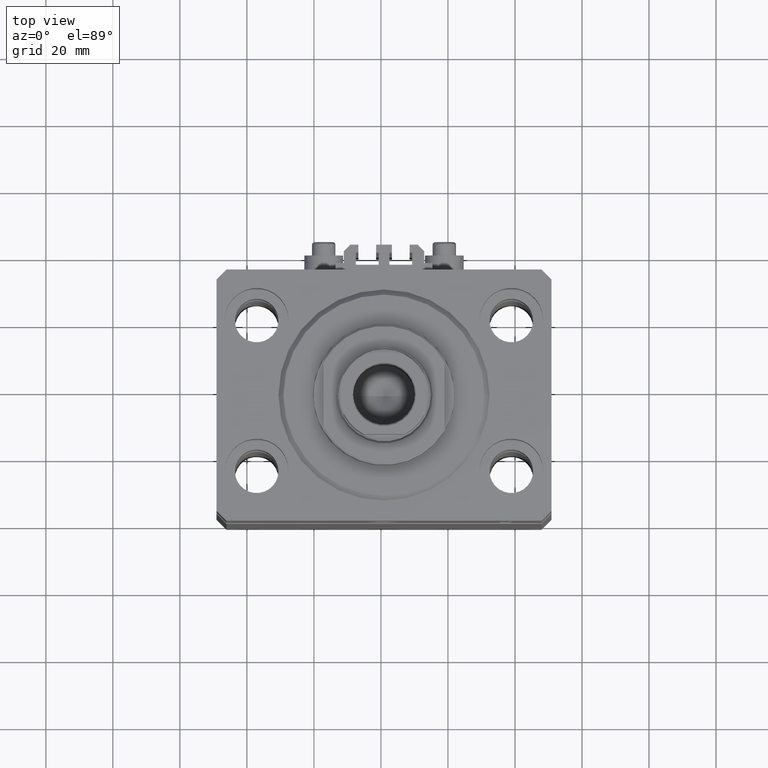
[diagram: clean part render]
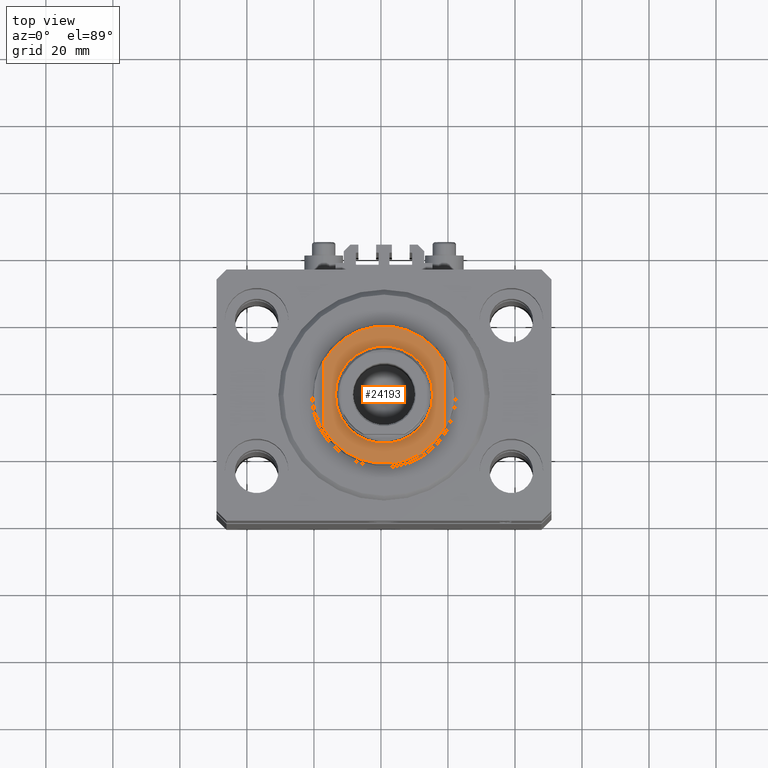
[diagram: same view with one face highlighted and labeled with its STEP entity id]
A machine part, top view. The second image highlights one B-rep face of the part: STEP entity #24193.
In plain terms, the highlighted planar face has unit normal (0, 0, 1).
Its self-contained STEP definition (entity closure, byte-faithful):
#50 = AXIS2_PLACEMENT_3D ( 'NONE', #4426, #33071, #15017 ) ;
#1079 = FACE_OUTER_BOUND ( 'NONE', #18565, .T. ) ;
#2350 = CIRCLE ( 'NONE', #9271, 14.49999999999998579 ) ;
#2853 = EDGE_CURVE ( 'NONE', #46444, #36786, #41005, .T. ) ;
#4426 = CARTESIAN_POINT ( 'NONE',  ( 0.000000000000000000, 0.000000000000000000, -8.000000000000000000 ) ) ;
#4464 = PLANE ( 'NONE',  #9846 ) ;
#4595 = AXIS2_PLACEMENT_3D ( 'NONE', #44918, #44424, #4707 ) ;
#4707 = DIRECTION ( 'NONE',  ( -1.000000000000000000, 0.000000000000000000, 0.000000000000000000 ) ) ;
#6964 = ORIENTED_EDGE ( 'NONE', *, *, #34503, .T. ) ;
#8561 = DIRECTION ( 'NONE',  ( 0.000000000000000000, 0.000000000000000000, -1.000000000000000000 ) ) ;
#9271 = AXIS2_PLACEMENT_3D ( 'NONE', #41859, #31254, #12722 ) ;
#9846 = AXIS2_PLACEMENT_3D ( 'NONE', #15294, #8561, #44425 ) ;
#11095 = VECTOR ( 'NONE', #17756, 1000.000000000000000 ) ;
#12107 = DIRECTION ( 'NONE',  ( -0.000000000000000000, -1.000000000000000000, -0.000000000000000000 ) ) ;
#12722 = DIRECTION ( 'NONE',  ( -1.000000000000000000, 0.000000000000000000, 0.000000000000000000 ) ) ;
#13142 = EDGE_CURVE ( 'NONE', #42202, #20697, #14626, .T. ) ;
#13629 = CARTESIAN_POINT ( 'NONE',  ( 18.00000000000000000, 9.810708435174301911, -8.000000000000000000 ) ) ;
#14587 = CIRCLE ( 'NONE', #4595, 20.50000000000000355 ) ;
#14626 = LINE ( 'NONE', #24991, #11095 ) ;
#14957 = CARTESIAN_POINT ( 'NONE',  ( -14.49999999999998579, 0.000000000000000000, -8.000000000000000000 ) ) ;
#15017 = DIRECTION ( 'NONE',  ( -1.000000000000000000, 0.000000000000000000, 0.000000000000000000 ) ) ;
#15057 = FACE_BOUND ( 'NONE', #19335, .T. ) ;
#15228 = CARTESIAN_POINT ( 'NONE',  ( -18.00000000000000000, -41.24318125460256113, -8.000000000000000000 ) ) ;
#15294 = CARTESIAN_POINT ( 'NONE',  ( 0.000000000000000000, 0.000000000000000000, -8.000000000000000000 ) ) ;
#17756 = DIRECTION ( 'NONE',  ( 0.000000000000000000, -1.000000000000000000, -0.000000000000000000 ) ) ;
#18565 = EDGE_LOOP ( 'NONE', ( #45874, #43898, #38302, #37827 ) ) ;
#18911 = VERTEX_POINT ( 'NONE', #37576 ) ;
#19335 = EDGE_LOOP ( 'NONE', ( #32161, #6964 ) ) ;
#20697 = VERTEX_POINT ( 'NONE', #24298 ) ;
#20842 = DIRECTION ( 'NONE',  ( -0.000000000000000000, -0.000000000000000000, 1.000000000000000000 ) ) ;
#23641 = CARTESIAN_POINT ( 'NONE',  ( -18.00000000000000000, -9.810708435174301911, -8.000000000000000000 ) ) ;
#24193 = ADVANCED_FACE ( 'NONE', ( #15057, #1079 ), #4464, .T. ) ;
#24298 = CARTESIAN_POINT ( 'NONE',  ( 18.00000000000000000, -9.810708435174301911, -8.000000000000000000 ) ) ;
#24991 = CARTESIAN_POINT ( 'NONE',  ( 18.00000000000000000, -41.24318125460256113, -8.000000000000000000 ) ) ;
#29834 = CARTESIAN_POINT ( 'NONE',  ( -18.00000000000000000, 9.810708435174301911, -8.000000000000000000 ) ) ;
#31254 = DIRECTION ( 'NONE',  ( -0.000000000000000000, -0.000000000000000000, 1.000000000000000000 ) ) ;
#32161 = ORIENTED_EDGE ( 'NONE', *, *, #34027, .T. ) ;
#33071 = DIRECTION ( 'NONE',  ( 0.000000000000000000, 0.000000000000000000, -1.000000000000000000 ) ) ;
#34027 = EDGE_CURVE ( 'NONE', #35980, #18911, #2350, .T. ) ;
#34503 = EDGE_CURVE ( 'NONE', #18911, #35980, #34676, .T. ) ;
#34600 = EDGE_CURVE ( 'NONE', #46444, #42202, #40057, .T. ) ;
#34676 = CIRCLE ( 'NONE', #40825, 14.49999999999998579 ) ;
#35980 = VERTEX_POINT ( 'NONE', #14957 ) ;
#36786 = VERTEX_POINT ( 'NONE', #23641 ) ;
#36946 = VECTOR ( 'NONE', #12107, 1000.000000000000000 ) ;
#37576 = CARTESIAN_POINT ( 'NONE',  ( 14.49999999999998579, 1.775737858763660437E-15, -8.000000000000000000 ) ) ;
#37827 = ORIENTED_EDGE ( 'NONE', *, *, #2853, .F. ) ;
#38302 = ORIENTED_EDGE ( 'NONE', *, *, #40764, .T. ) ;
#40057 = CIRCLE ( 'NONE', #50, 20.50000000000000355 ) ;
#40764 = EDGE_CURVE ( 'NONE', #20697, #36786, #14587, .T. ) ;
#40825 = AXIS2_PLACEMENT_3D ( 'NONE', #47068, #20842, #43664 ) ;
#41005 = LINE ( 'NONE', #15228, #36946 ) ;
#41859 = CARTESIAN_POINT ( 'NONE',  ( 0.000000000000000000, 0.000000000000000000, -8.000000000000000000 ) ) ;
#42202 = VERTEX_POINT ( 'NONE', #13629 ) ;
#43664 = DIRECTION ( 'NONE',  ( -1.000000000000000000, 0.000000000000000000, 0.000000000000000000 ) ) ;
#43898 = ORIENTED_EDGE ( 'NONE', *, *, #13142, .T. ) ;
#44424 = DIRECTION ( 'NONE',  ( 0.000000000000000000, 0.000000000000000000, -1.000000000000000000 ) ) ;
#44425 = DIRECTION ( 'NONE',  ( -1.000000000000000000, 0.000000000000000000, -0.000000000000000000 ) ) ;
#44918 = CARTESIAN_POINT ( 'NONE',  ( 0.000000000000000000, 0.000000000000000000, -8.000000000000000000 ) ) ;
#45874 = ORIENTED_EDGE ( 'NONE', *, *, #34600, .T. ) ;
#46444 = VERTEX_POINT ( 'NONE', #29834 ) ;
#47068 = CARTESIAN_POINT ( 'NONE',  ( 0.000000000000000000, 0.000000000000000000, -8.000000000000000000 ) ) ;